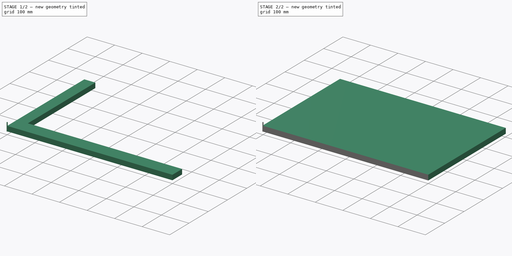
[diagram: build sequence overview — one tinted view per stage of 2, left to right]
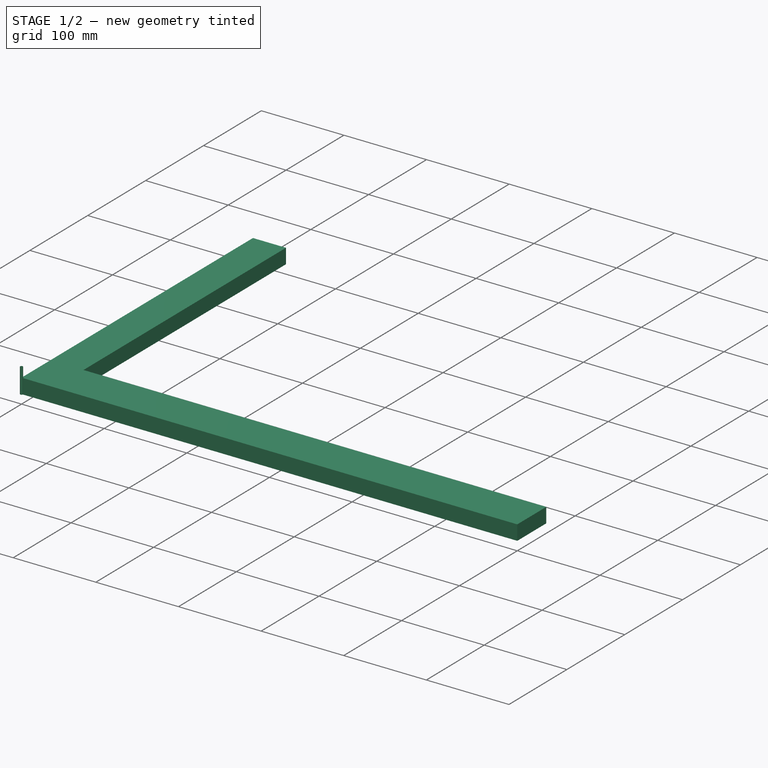
[diagram: stage 1 of 2 — iso view after this stage's code; geometry added in this stage tinted green]
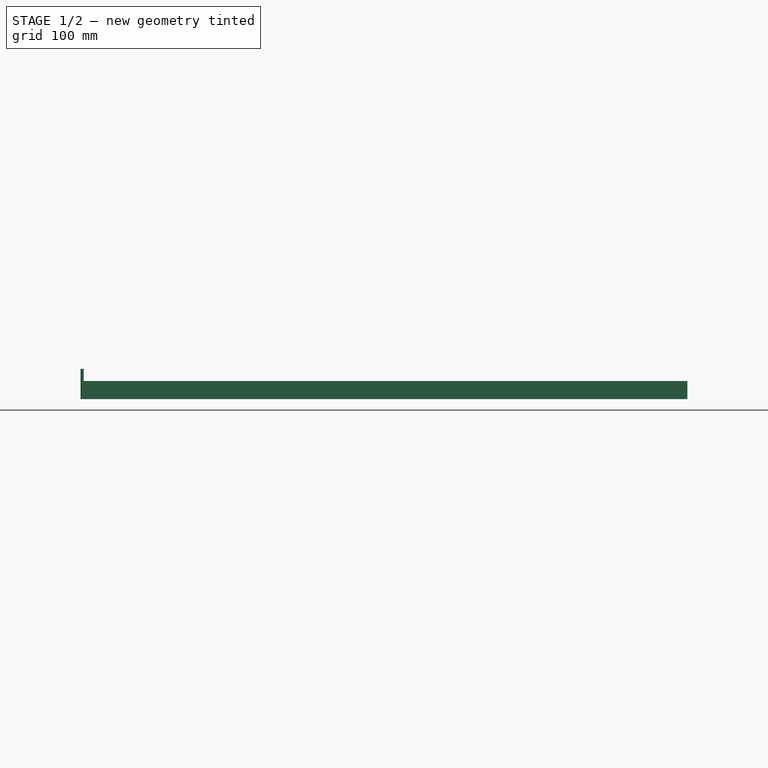
[diagram: stage 1 of 2 — front view after this stage's code; geometry added in this stage tinted green]
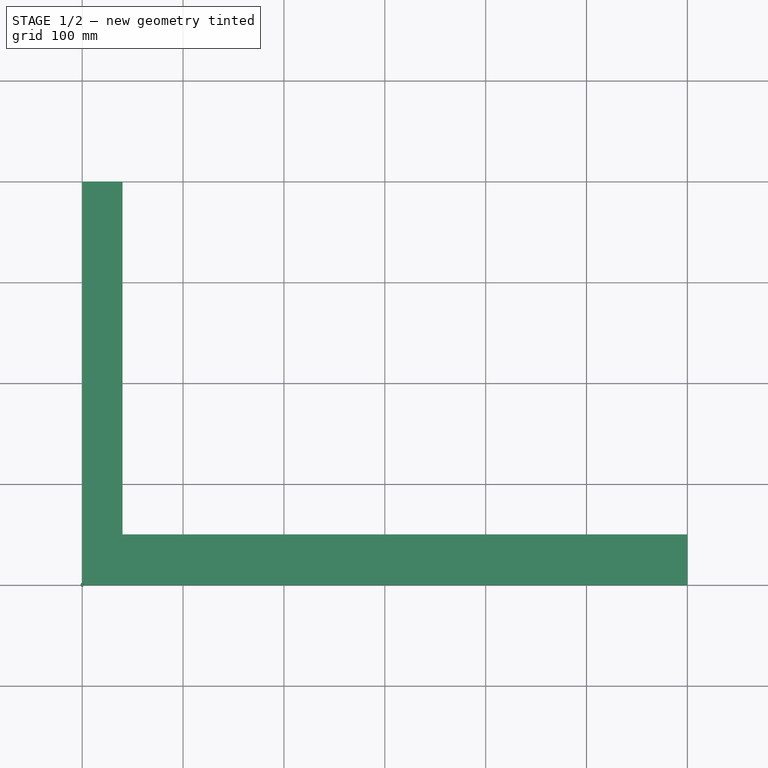
[diagram: stage 1 of 2 — top view after this stage's code; geometry added in this stage tinted green]
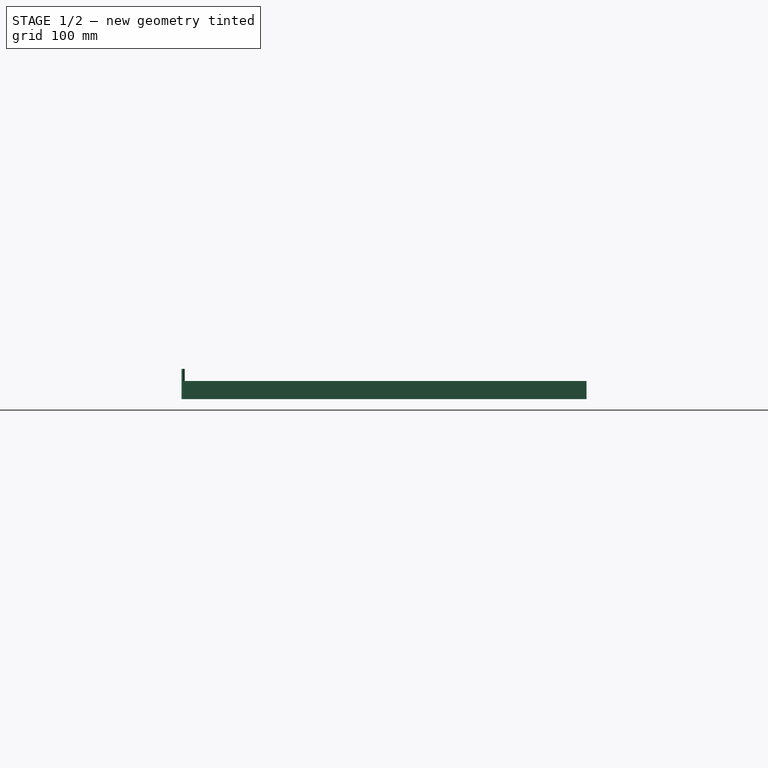
[diagram: stage 1 of 2 — right view after this stage's code; geometry added in this stage tinted green]
FCSTD DOCUMENT  (FreeCAD 0.22R35456 (Git))
Label: corner400x600
License: All rights reserved
LicenseURL: http://en.wikipedia.org/wiki/All_rights_reserved
objects: Path::FeaturePython×4, Part::FeaturePython×3, App::DocumentObjectGroup×3, Sketcher::SketchObject×1, PartDesign::SubShapeBinder×1, PartDesign::Pad×1, PartDesign::Body×1, App::FeaturePython×1
note: 9 computed .brp shape members not serialized (recipe doc carries the construction recipe); baked Part::Feature solids carry a one-line shape summary decoded from their .brp

FEATURE [Sketcher::SketchObject] Sketch
  FullyConstrained = true
  sketch-geometry (6):
    g0: LineSegment StartX=40 StartY=400 StartZ=0 EndX=0 EndY=400 EndZ=0
    g1: LineSegment StartX=0 StartY=400 StartZ=0 EndX=0 EndY=0 EndZ=0
    g2: LineSegment StartX=0 StartY=0 StartZ=0 EndX=600 EndY=0 EndZ=0
    g3: LineSegment StartX=600 StartY=0 StartZ=0 EndX=600 EndY=50 EndZ=0
    g4: LineSegment StartX=600 StartY=50 StartZ=0 EndX=40 EndY=50 EndZ=0
    g5: LineSegment StartX=40 StartY=50 StartZ=0 EndX=40 EndY=400 EndZ=0
  constraints (17):
    c: PointOnObject(g0,g-2)
    c: Horizontal(g0)
    c: Coincident(g0,g1)
    c: Coincident(g1,g-1)
    c: Coincident(g1,g2)
    c: PointOnObject(g2,g-1)
    c: Coincident(g2,g3)
    c: Vertical(g3)
    c: Coincident(g3,g4)
    c: Horizontal(g4)
    c: Coincident(g4,g5)
    c: Coincident(g5,g0)
    c: Vertical(g5)
    c: DistanceX(g0,g0) = 40
    c: DistanceY(g3,g3) = 50
    c: DistanceY(g1,g1) = 400
    c: DistanceX(g2,g2) = 600
FEATURE [PartDesign::SubShapeBinder] Binder
  BindCopyOnChange = 0
  BindMode = 0
  ClaimChildren = false
  Context = -> Body [Binder.]
  Fuse = false
  MakeFace = true
  OffsetFill = false
  OffsetIntersection = false
  OffsetJoinType = 0
  OffsetOpenResult = false
  PartialLoad = false
  Relative = true
  Support = -> [Sketch]
  _Version = 2
FEATURE [PartDesign::Pad] Pad
  Direction = (0,0,1)
  Length = 18
  Length2 = 10
  Profile = -> Binder
  Type = 0
FEATURE [App::DocumentObjectGroup] Model
  Group = -> [Clone]
FEATURE [Part::FeaturePython] ToolBit  label="3.175mm Endmill"  # Path/CAM toolbit (typed FeaturePython)
  BitPropertyNames = Chipload | CuttingEdgeHeight | Diameter | Flutes | Length | Material | ShankDiameter | SpindleDirection
  BitShape = <path>
  Chipload = 0
  CuttingEdgeHeight = 30
  Diameter = 3.17
  Flutes = 0
  Length = 10
  Material = 0
  ShankDiameter = 3
  ShapeName = endmill
  SpindleDirection = 0
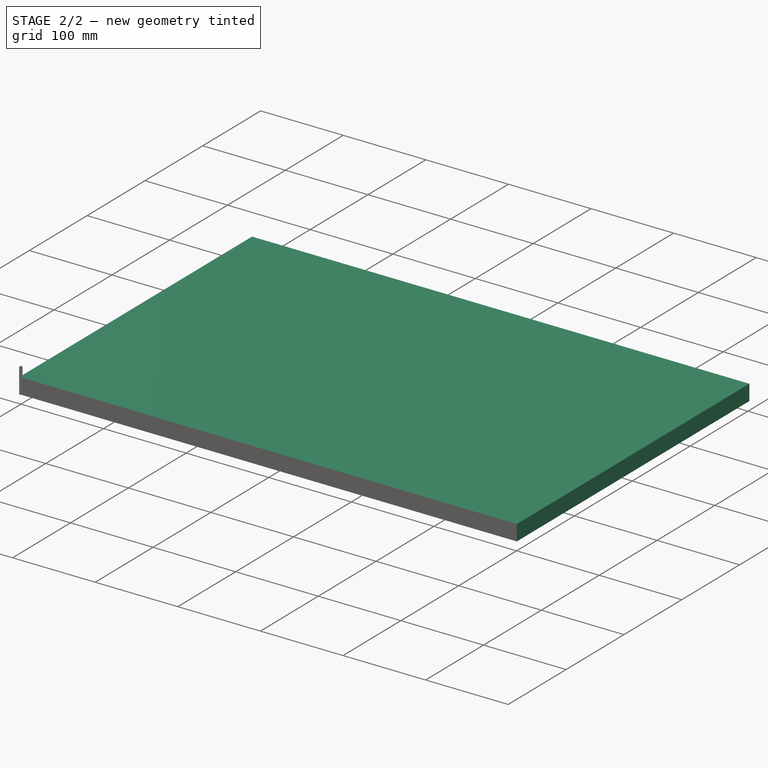
[diagram: stage 2 of 2 — iso view after this stage's code; geometry added in this stage tinted green]
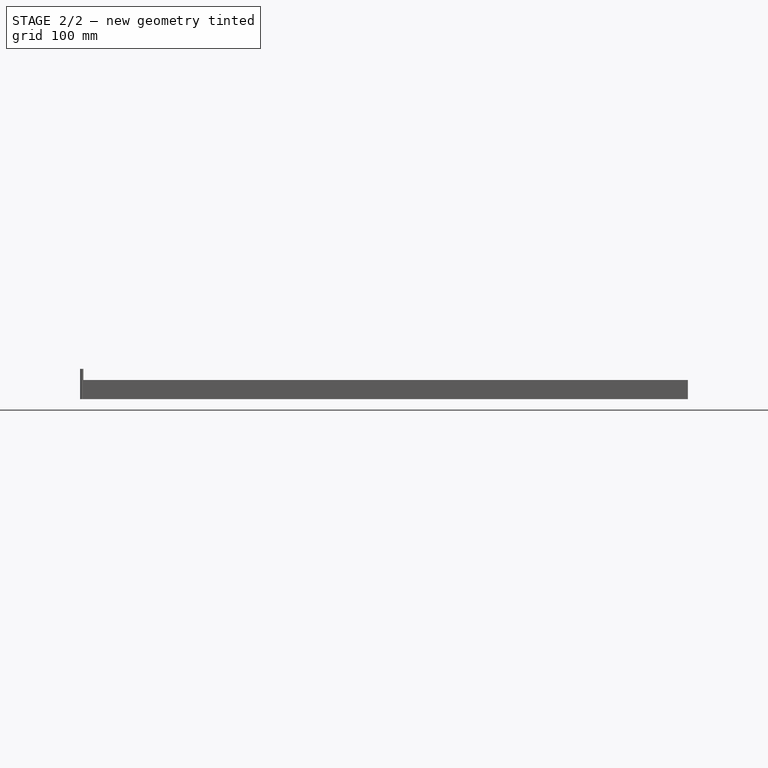
[diagram: stage 2 of 2 — front view after this stage's code; geometry added in this stage tinted green]
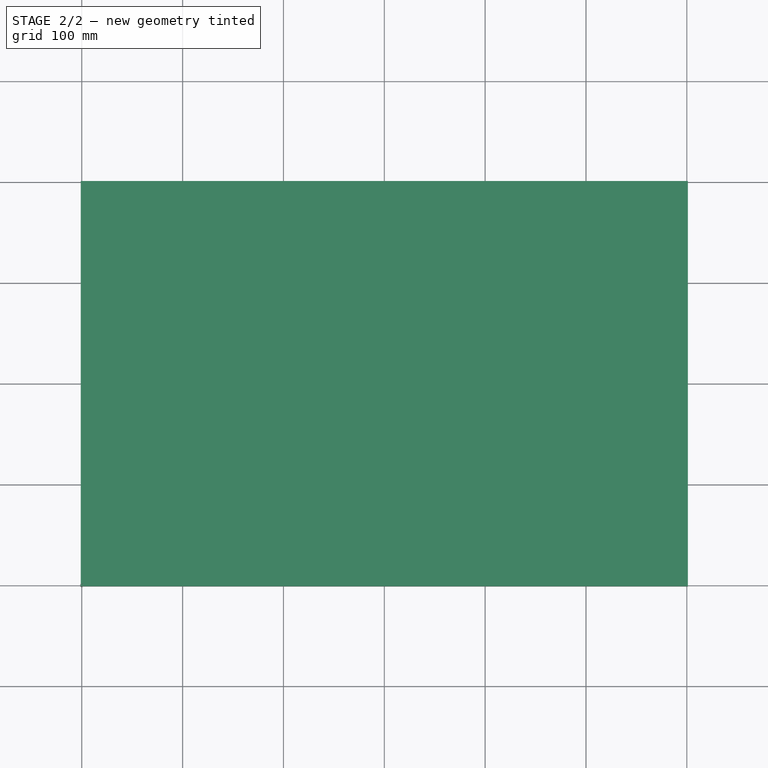
[diagram: stage 2 of 2 — top view after this stage's code; geometry added in this stage tinted green]
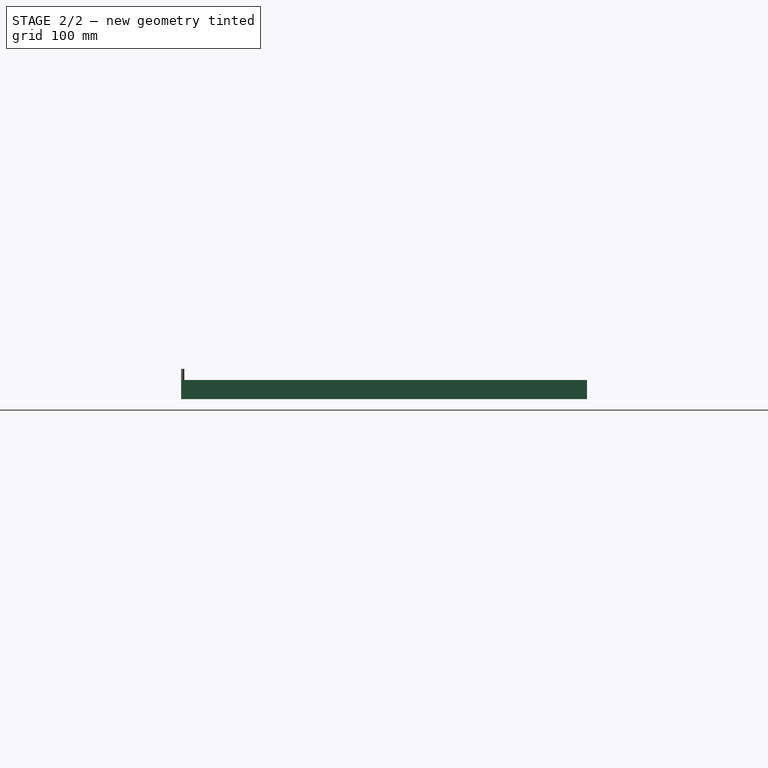
[diagram: stage 2 of 2 — right view after this stage's code; geometry added in this stage tinted green]
FEATURE [PartDesign::Body] Body
  Group = -> [Binder,Pad]
  Origin = -> Origin
  Tip = -> Pad
FEATURE [App::FeaturePython] SetupSheet  # Path/CAM operation (typed FeaturePython)
  ClearanceHeightExpression = OpStockZMax+SetupSheet.ClearanceHeightOffset
  ClearanceHeightOffset = 5
  CoolantMode = 0
  CoolantModes = None | Flood | Mist
  FinalDepthExpression = OpFinalDepth
  HorizRapid = 0
  ProfileDirection = 1
  ProfileprocessCircles = true
  ProfileprocessHoles = true
  ProfileprocessPerimeter = true
  SafeHeightExpression = OpStockZMax+SetupSheet.SafeHeightOffset
  SafeHeightOffset = 3
  StartDepthExpression = OpStartDepth
  StepDownExpression = OpToolDiameter
  VertRapid = 0
FEATURE [Part::FeaturePython] Clone  label="Model-Body"  # Draft clone (typed FeaturePython)
  AttacherType = Attacher::AttachEngine3D
  Fuse = false
  Objects = -> [Body]
  PathResource = Model
  Scale = (1,1,1)
FEATURE [Path::FeaturePython] __175mm_Endmill  label="3.175mm Endmill001"  # Path/CAM operation (typed FeaturePython)
  HorizFeed = 51.6667
  HorizRapid = 0
  SpindleDir = 0
  SpindleSpeed = 18000
  Tool = -> ToolBit
  ToolNumber = 1
  VertFeed = 16.6667
  VertRapid = 0
  expr: HorizRapid = SetupSheet.HorizRapid
  expr: VertRapid = SetupSheet.VertRapid
FEATURE [App::DocumentObjectGroup] Tools
  Group = -> [__175mm_Endmill]
FEATURE [Part::FeaturePython] Stock  # WARN: FeaturePython — macro-defined, semantics opaque (R4)
  Base = -> Model
  ExtXneg = 1
  ExtXpos = 1
  ExtYneg = 1
  ExtYpos = 1
  ExtZneg = 0
  ExtZpos = 1
  StockType = FromBase
FEATURE [Path::FeaturePython] Profile  # Path/CAM operation (typed FeaturePython)
  Active = true
  AreaParams:
    Tolerance = 1e-07
    FitArcs = True
    Simplify = False
    CleanDistance = 0.0
    Accuracy = 0.01
    Unit = 1.0
    MinArcPoints = 4
    MaxArcPoints = 100
    ClipperScale = 10000000.0
    Fill = 0
    Coplanar = 0
    Reorient = True
    Outline = False
    Explode = False
    OpenMode = 0
    Deflection = 0.01
    SubjectFill = 0
    ClipFill = 0
    Offset = 1.585
    ExtraPass = 0
    Stepover = 0.0
    LastStepover = 0.0
    JoinType = 0
    EndType = 0
    MiterLimit = 2.0
    RoundPrecision = 0.0
    PocketMode = 0
    ToolRadius = 1.0
    PocketExtraOffset = 0.0
    PocketStepover = 0.0
    PocketLastStepover = 0.0
    FromCenter = False
    Angle = 45.0
    AngleShift = 0.0
    Shift = 0.0
    Thicken = False
    SectionCount = -1
    Stepdown = 1.0
    SectionOffset = 0.0
    SectionTolerance = 1e-06
    SectionMode = 2
    Project = False
  ClearanceHeight = 24
  CoolantMode = 0
  CycleTime = 00:04:08
  Direction = 1
  FinalDepth = 0
  HandleMultipleFeatures = 0
  JoinType = 0
  MiterLimit = 0.1
  OffsetExtra = 0
  OpFinalDepth = 0
  OpStartDepth = 19
  OpStockZMax = 19
  OpStockZMin = 0
  OpToolDiameter = 3.17
  PathParams = {'orientation': 0, 'feedrate': 51.666666666666664, 'feedrate_v': 16.666666666666668, 'verbose': True, 'resume_height': 22.0, 'retraction': 24.0, 'return_end': True, 'preamble': False}
  SafeHeight = 22
  Side = 0
  SplitArcs = false
  StartDepth = 19
  StartPoint = (0,0,0)
  StepDown = 3.17
  ToolController = -> __175mm_Endmill
  UseComp = true
  UseStartPoint = false
  processCircles = true
  processHoles = true
  processPerimeter = true
  expr: ClearanceHeight = OpStockZMax + SetupSheet.ClearanceHeightOffset
  expr: FinalDepth = OpFinalDepth
  expr: SafeHeight = OpStockZMax + SetupSheet.SafeHeightOffset
  expr: StartDepth = OpStartDepth
  expr: StepDown = OpToolDiameter
FEATURE [Path::FeaturePython] DressupDogbone  # Path/CAM operation (typed FeaturePython)
  Base = -> Profile
  Custom = 0
  Incision = 0
  Side = 0
  Style = 0
FEATURE [App::DocumentObjectGroup] Operations
  Group = -> [DressupDogbone]
FEATURE [Path::FeaturePython] Job  # Path/CAM operation (typed FeaturePython)
  CycleTime = 00:04:08
  Fixtures = G54
  GeometryTolerance = 0.01
  JobType = 0
  Model = -> Model
  Operations = -> Operations
  OrderOutputBy = 0
  PostProcessor = 3
  PostProcessorOutputFile = %d.%j.tap
  SetupSheet = -> SetupSheet
  SplitOutput = false
  Stock = -> Stock
  Tools = -> Tools
note: 1 file-system path scrubbed to <path> (originals preserved in the JSON sidecar)
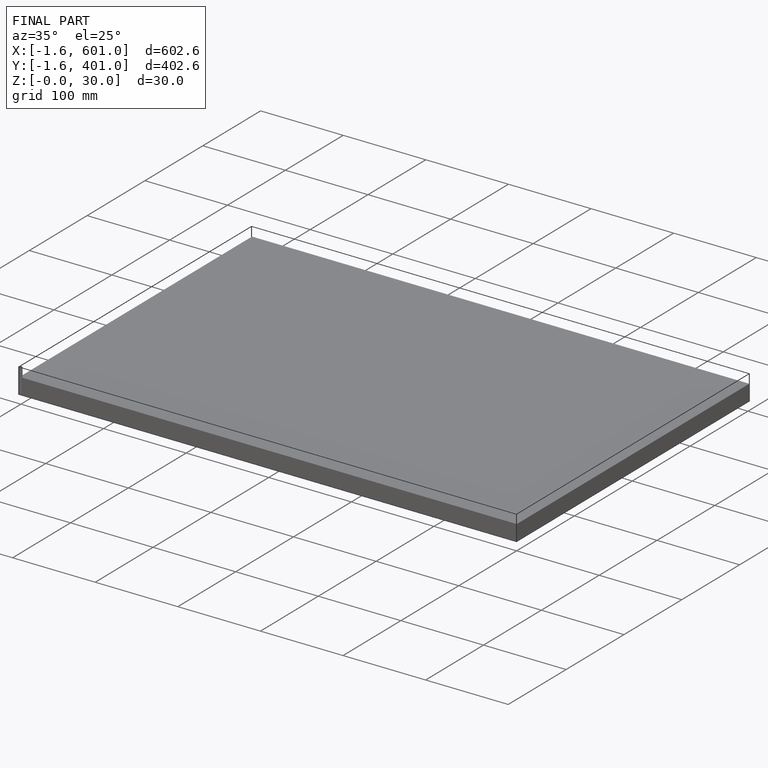
[diagram: finished part — iso view with bounding-box wireframe]
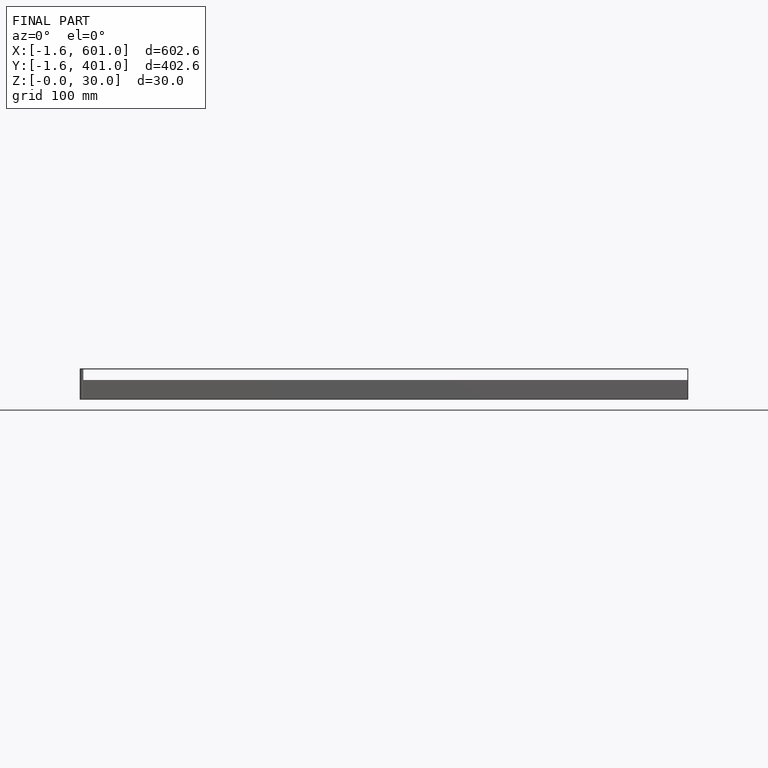
[diagram: finished part — front view with bounding-box wireframe]
